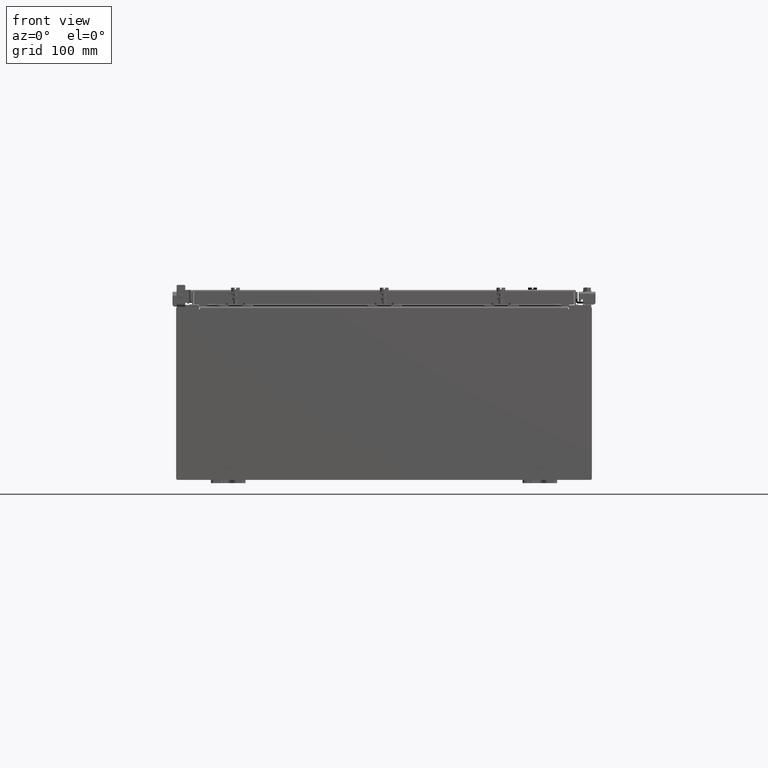
[diagram: clean part render]
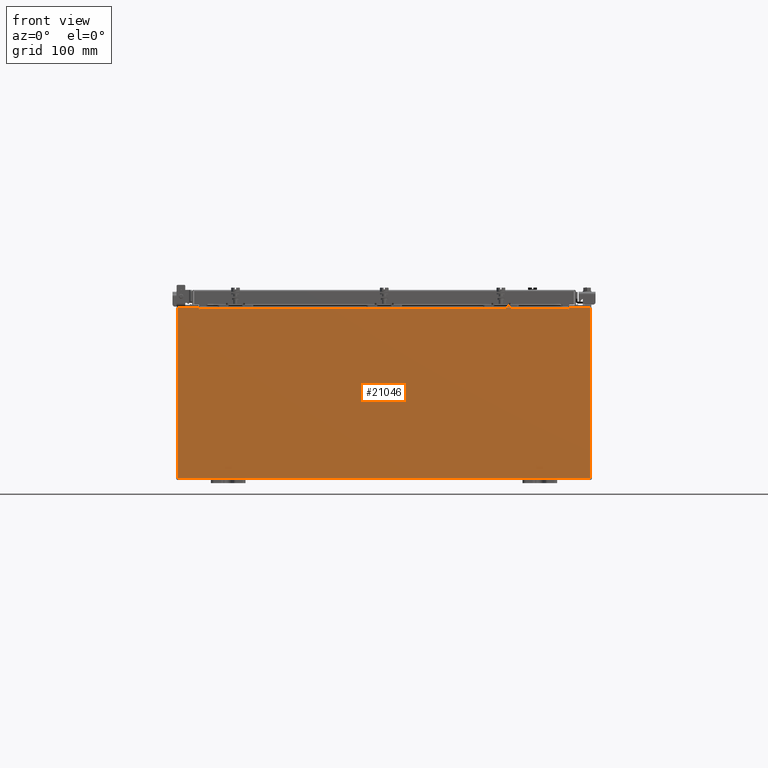
[diagram: same view with one face highlighted and labeled with its STEP entity id]
A machine part, front view. The second image highlights one B-rep face of the part: STEP entity #21046.
In plain terms, the highlighted planar face has unit normal (-0, 1, -0).
Its self-contained STEP definition (entity closure, byte-faithful):
#221 = VECTOR ( 'NONE', #13266, 39.37007874015748100 ) ;
#479 = LINE ( 'NONE', #20379, #14746 ) ;
#537 = CARTESIAN_POINT ( 'NONE',  ( -10.63720000000000400, -7.171100983368691200E-016, 4.912300000000000100 ) ) ;
#595 = EDGE_CURVE ( 'NONE', #17138, #10560, #9411, .T. ) ;
#678 = DIRECTION ( 'NONE',  ( -1.000000000000000000, -0.0000000000000000000, -0.0000000000000000000 ) ) ;
#713 = DIRECTION ( 'NONE',  ( 1.000000000000000000, 0.0000000000000000000, 0.0000000000000000000 ) ) ;
#755 = VECTOR ( 'NONE', #8089, 39.37007874015748100 ) ;
#1145 = ORIENTED_EDGE ( 'NONE', *, *, #10033, .T. ) ;
#1267 = PLANE ( 'NONE',  #8700 ) ;
#1304 = EDGE_CURVE ( 'NONE', #7330, #22450, #6047, .T. ) ;
#1352 = CARTESIAN_POINT ( 'NONE',  ( 0.0000000000000000000, 0.0000000000000000000, 0.0000000000000000000 ) ) ;
#1446 = ORIENTED_EDGE ( 'NONE', *, *, #18984, .F. ) ;
#1570 = CARTESIAN_POINT ( 'NONE',  ( -11.92530000000000000, 0.0000000000000000000, 4.925300000000000000 ) ) ;
#1851 = CARTESIAN_POINT ( 'NONE',  ( -10.67455000000000200, -0.0000000000000000000, 0.0000000000000000000 ) ) ;
#2338 = ORIENTED_EDGE ( 'NONE', *, *, #595, .T. ) ;
#2547 = CARTESIAN_POINT ( 'NONE',  ( 10.63720000000000400, 0.0000000000000000000, 0.0000000000000000000 ) ) ;
#2631 = LINE ( 'NONE', #3853, #7400 ) ;
#2822 = CARTESIAN_POINT ( 'NONE',  ( -11.92530000000000000, 0.0000000000000000000, 4.925300000000000000 ) ) ;
#3853 = CARTESIAN_POINT ( 'NONE',  ( -11.92530000000000000, 0.0000000000000000000, 4.925300000000000000 ) ) ;
#3934 = ORIENTED_EDGE ( 'NONE', *, *, #5051, .F. ) ;
#3958 = ORIENTED_EDGE ( 'NONE', *, *, #19017, .T. ) ;
#4342 = CARTESIAN_POINT ( 'NONE',  ( -10.63720000000000400, -7.171100983368691200E-016, 4.912300000000000100 ) ) ;
#5051 = EDGE_CURVE ( 'NONE', #22450, #10560, #12570, .T. ) ;
#5522 = LINE ( 'NONE', #9781, #755 ) ;
#5723 = VERTEX_POINT ( 'NONE', #13505 ) ;
#5795 = DIRECTION ( 'NONE',  ( -0.0000000000000000000, 1.000000000000000000, -0.0000000000000000000 ) ) ;
#5889 = CARTESIAN_POINT ( 'NONE',  ( -10.63720000000000400, -0.0000000000000000000, 4.874950000000000100 ) ) ;
#6047 = CIRCLE ( 'NONE', #16772, 0.01867499999999949400 ) ;
#6126 = FACE_OUTER_BOUND ( 'NONE', #10091, .T. ) ;
#6516 = VERTEX_POINT ( 'NONE', #537 ) ;
#6732 = DIRECTION ( 'NONE',  ( 0.0000000000000000000, -0.0000000000000000000, -1.000000000000000000 ) ) ;
#6863 = CARTESIAN_POINT ( 'NONE',  ( 10.67455000000000200, 0.0000000000000000000, 4.874950000000000100 ) ) ;
#7188 = DIRECTION ( 'NONE',  ( 0.0000000000000000000, 0.0000000000000000000, 1.000000000000000000 ) ) ;
#7330 = VERTEX_POINT ( 'NONE', #5889 ) ;
#7400 = VECTOR ( 'NONE', #21745, 39.37007874015748100 ) ;
#7486 = EDGE_CURVE ( 'NONE', #6516, #10837, #18049, .T. ) ;
#7802 = VECTOR ( 'NONE', #7188, 39.37007874015748100 ) ;
#7966 = ORIENTED_EDGE ( 'NONE', *, *, #8036, .T. ) ;
#8036 = EDGE_CURVE ( 'NONE', #9329, #17138, #2631, .T. ) ;
#8089 = DIRECTION ( 'NONE',  ( -4.340572780400004900E-014, 0.0000000000000000000, -1.000000000000000000 ) ) ;
#8661 = CARTESIAN_POINT ( 'NONE',  ( -10.63720000000000400, -0.0000000000000000000, 0.0000000000000000000 ) ) ;
#8700 = AXIS2_PLACEMENT_3D ( 'NONE', #1352, #17450, #6732 ) ;
#9120 = VERTEX_POINT ( 'NONE', #6863 ) ;
#9121 = EDGE_CURVE ( 'NONE', #6516, #7330, #12006, .T. ) ;
#9329 = VERTEX_POINT ( 'NONE', #21616 ) ;
#9411 = LINE ( 'NONE', #1570, #23105 ) ;
#9524 = CARTESIAN_POINT ( 'NONE',  ( 10.63720000000000400, 0.0000000000000000000, 4.912300000000000100 ) ) ;
#9640 = DIRECTION ( 'NONE',  ( 0.0000000000000000000, 0.0000000000000000000, -1.000000000000000000 ) ) ;
#9781 = CARTESIAN_POINT ( 'NONE',  ( 10.67454999999979000, -0.0000000000000000000, -4.633366117301795800E-013 ) ) ;
#9946 = DIRECTION ( 'NONE',  ( 1.000000000000000000, 0.0000000000000000000, 0.0000000000000000000 ) ) ;
#10033 = EDGE_CURVE ( 'NONE', #5723, #11576, #479, .T. ) ;
#10043 = CARTESIAN_POINT ( 'NONE',  ( 10.63720000000000400, 0.0000000000000000000, 4.874950000000000100 ) ) ;
#10091 = EDGE_LOOP ( 'NONE', ( #3934, #22426, #10790, #15144, #11627, #22480, #1446, #3958, #1145, #13402, #7966, #2338 ) ) ;
#10093 = DIRECTION ( 'NONE',  ( -0.0000000000000000000, 1.000000000000000000, -0.0000000000000000000 ) ) ;
#10560 = VERTEX_POINT ( 'NONE', #12452 ) ;
#10661 = AXIS2_PLACEMENT_3D ( 'NONE', #16496, #5795, #18288 ) ;
#10790 = ORIENTED_EDGE ( 'NONE', *, *, #9121, .F. ) ;
#10837 = VERTEX_POINT ( 'NONE', #9524 ) ;
#11576 = VERTEX_POINT ( 'NONE', #18804 ) ;
#11627 = ORIENTED_EDGE ( 'NONE', *, *, #18439, .F. ) ;
#11993 = EDGE_CURVE ( 'NONE', #11576, #9329, #17790, .T. ) ;
#12006 = LINE ( 'NONE', #8661, #15603 ) ;
#12302 = DIRECTION ( 'NONE',  ( 1.000000000000000000, 0.0000000000000000000, 0.0000000000000000000 ) ) ;
#12452 = CARTESIAN_POINT ( 'NONE',  ( -10.67455000000000200, 0.0000000000000000000, 4.925300000000000000 ) ) ;
#12570 = LINE ( 'NONE', #1851, #7802 ) ;
#12746 = VECTOR ( 'NONE', #713, 39.37007874015748100 ) ;
#13266 = DIRECTION ( 'NONE',  ( 0.0000000000000000000, 0.0000000000000000000, 1.000000000000000000 ) ) ;
#13402 = ORIENTED_EDGE ( 'NONE', *, *, #11993, .T. ) ;
#13505 = CARTESIAN_POINT ( 'NONE',  ( 11.92530000000000000, 0.0000000000000000000, 4.925300000000000000 ) ) ;
#14467 = VECTOR ( 'NONE', #9946, 39.37007874015748100 ) ;
#14746 = VECTOR ( 'NONE', #9640, 39.37007874015748100 ) ;
#14881 = VERTEX_POINT ( 'NONE', #10043 ) ;
#14986 = CARTESIAN_POINT ( 'NONE',  ( -11.92530000000000000, 0.0000000000000000000, -4.925300000000000000 ) ) ;
#15144 = ORIENTED_EDGE ( 'NONE', *, *, #7486, .T. ) ;
#15147 = CARTESIAN_POINT ( 'NONE',  ( -10.67455000000000200, 0.0000000000000000000, 4.874950000000000100 ) ) ;
#15603 = VECTOR ( 'NONE', #22939, 39.37007874015748100 ) ;
#16496 = CARTESIAN_POINT ( 'NONE',  ( 10.65587500000000200, 0.0000000000000000000, 4.874950000000000100 ) ) ;
#16772 = AXIS2_PLACEMENT_3D ( 'NONE', #20806, #10093, #22598 ) ;
#17138 = VERTEX_POINT ( 'NONE', #18669 ) ;
#17450 = DIRECTION ( 'NONE',  ( 0.0000000000000000000, -1.000000000000000000, 0.0000000000000000000 ) ) ;
#17790 = LINE ( 'NONE', #14986, #22539 ) ;
#18049 = LINE ( 'NONE', #4342, #12746 ) ;
#18288 = DIRECTION ( 'NONE',  ( 0.0000000000000000000, 0.0000000000000000000, -1.000000000000000000 ) ) ;
#18439 = EDGE_CURVE ( 'NONE', #14881, #10837, #19260, .T. ) ;
#18669 = CARTESIAN_POINT ( 'NONE',  ( -11.92530000000000000, 0.0000000000000000000, 4.925300000000000000 ) ) ;
#18804 = CARTESIAN_POINT ( 'NONE',  ( 11.92530000000000000, 0.0000000000000000000, -4.925300000000000000 ) ) ;
#18984 = EDGE_CURVE ( 'NONE', #22433, #9120, #5522, .T. ) ;
#19017 = EDGE_CURVE ( 'NONE', #22433, #5723, #19239, .T. ) ;
#19239 = LINE ( 'NONE', #2822, #14467 ) ;
#19260 = LINE ( 'NONE', #2547, #221 ) ;
#19548 = CIRCLE ( 'NONE', #10661, 0.01867499999999949400 ) ;
#20379 = CARTESIAN_POINT ( 'NONE',  ( 11.92530000000000000, 0.0000000000000000000, 4.925300000000000000 ) ) ;
#20438 = CARTESIAN_POINT ( 'NONE',  ( 10.67455000000000200, 0.0000000000000000000, 4.925300000000000000 ) ) ;
#20806 = CARTESIAN_POINT ( 'NONE',  ( -10.65587500000000200, 0.0000000000000000000, 4.874950000000000100 ) ) ;
#21046 = ADVANCED_FACE ( 'NONE', ( #6126 ), #1267, .F. ) ;
#21368 = EDGE_CURVE ( 'NONE', #9120, #14881, #19548, .T. ) ;
#21616 = CARTESIAN_POINT ( 'NONE',  ( -11.92530000000000000, 0.0000000000000000000, -4.925300000000000000 ) ) ;
#21745 = DIRECTION ( 'NONE',  ( -0.0000000000000000000, -0.0000000000000000000, 1.000000000000000000 ) ) ;
#22426 = ORIENTED_EDGE ( 'NONE', *, *, #1304, .F. ) ;
#22433 = VERTEX_POINT ( 'NONE', #20438 ) ;
#22450 = VERTEX_POINT ( 'NONE', #15147 ) ;
#22480 = ORIENTED_EDGE ( 'NONE', *, *, #21368, .F. ) ;
#22539 = VECTOR ( 'NONE', #678, 39.37007874015748100 ) ;
#22598 = DIRECTION ( 'NONE',  ( 0.0000000000000000000, 0.0000000000000000000, -1.000000000000000000 ) ) ;
#22939 = DIRECTION ( 'NONE',  ( 0.0000000000000000000, 0.0000000000000000000, -1.000000000000000000 ) ) ;
#23105 = VECTOR ( 'NONE', #12302, 39.37007874015748100 ) ;